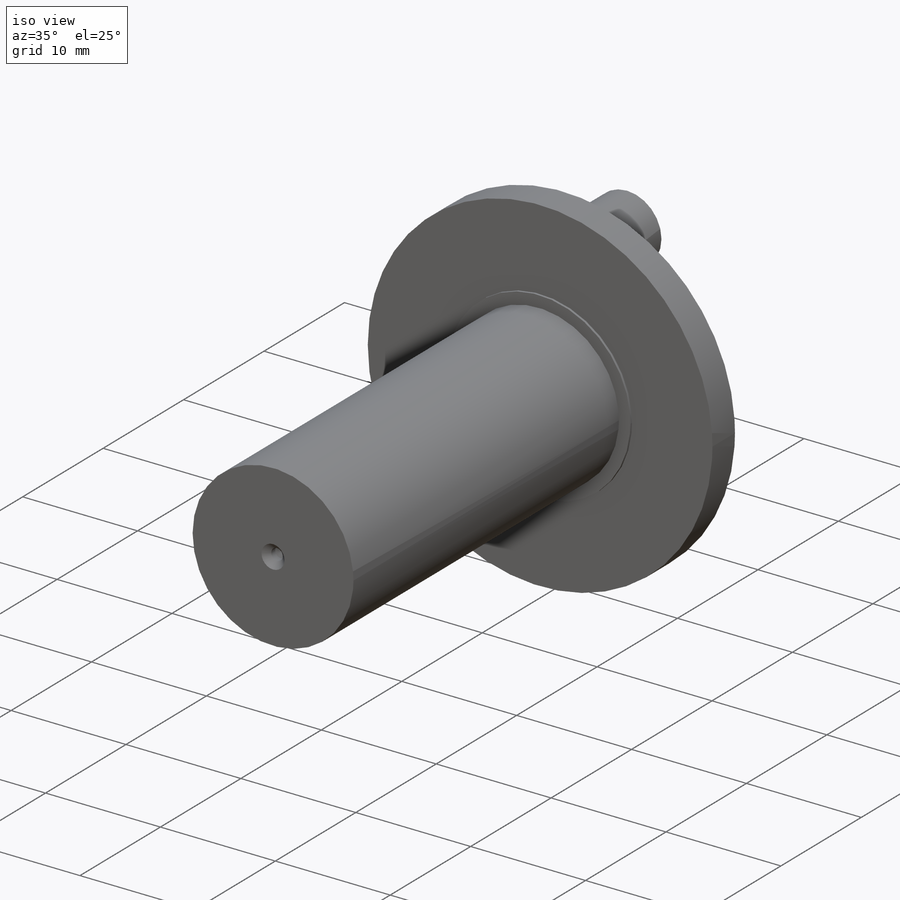
[diagram: iso view]
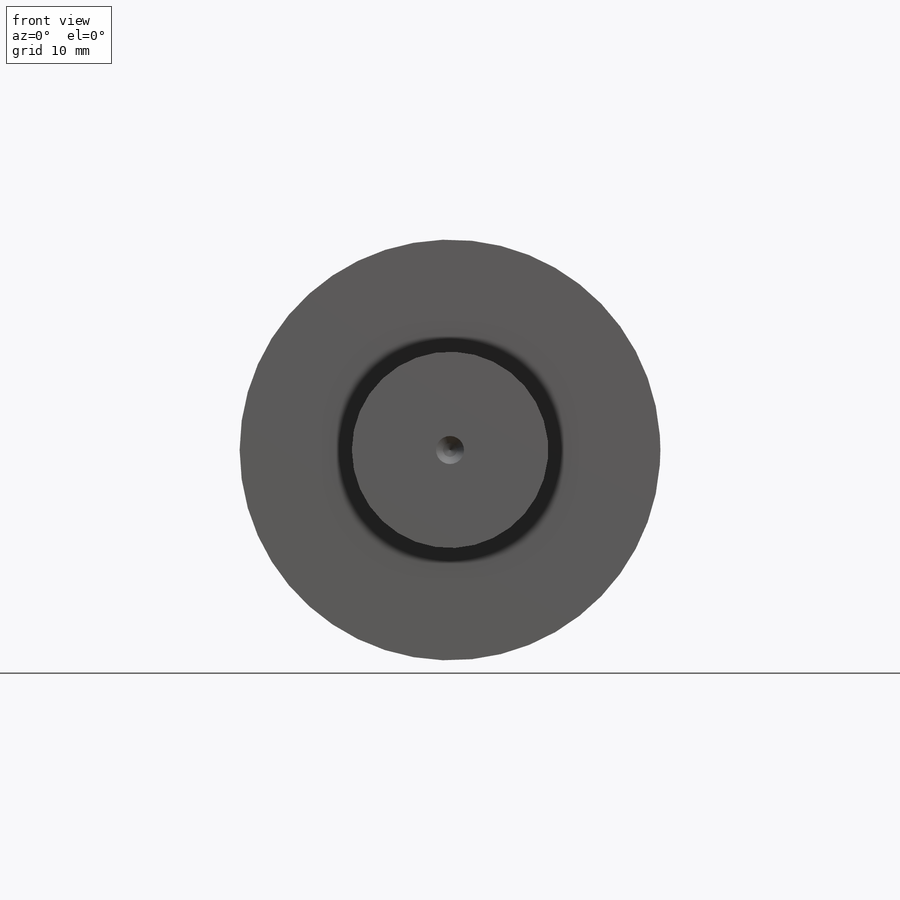
[diagram: front view]
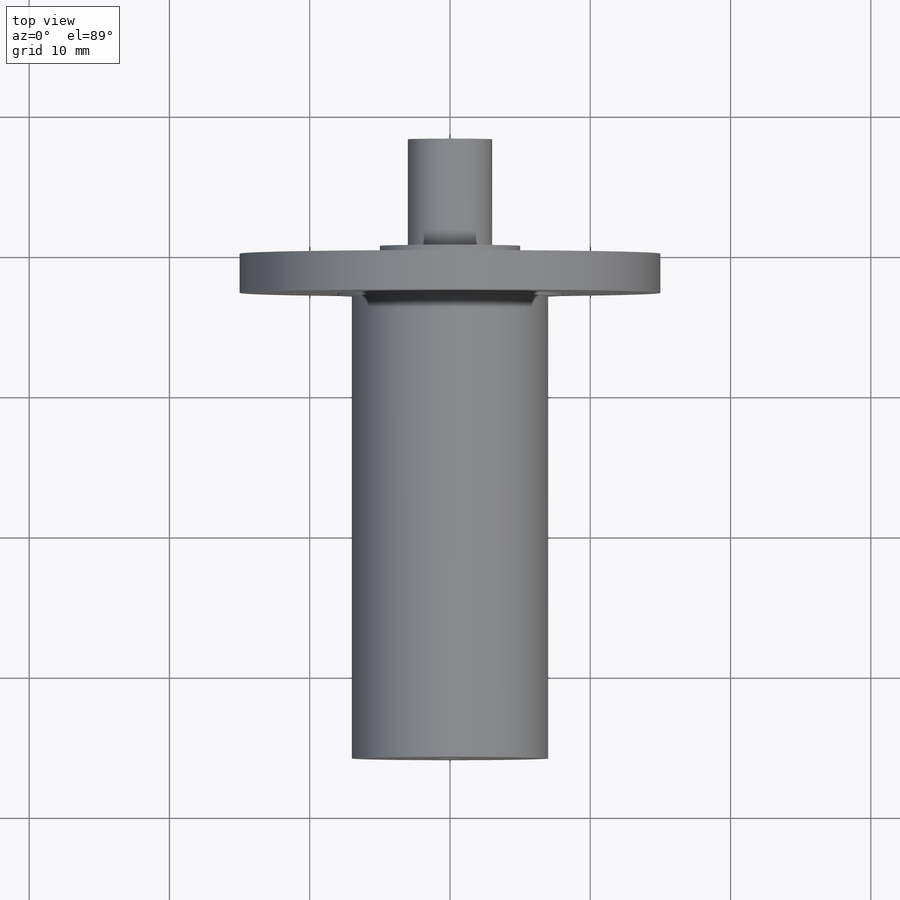
[diagram: top view]
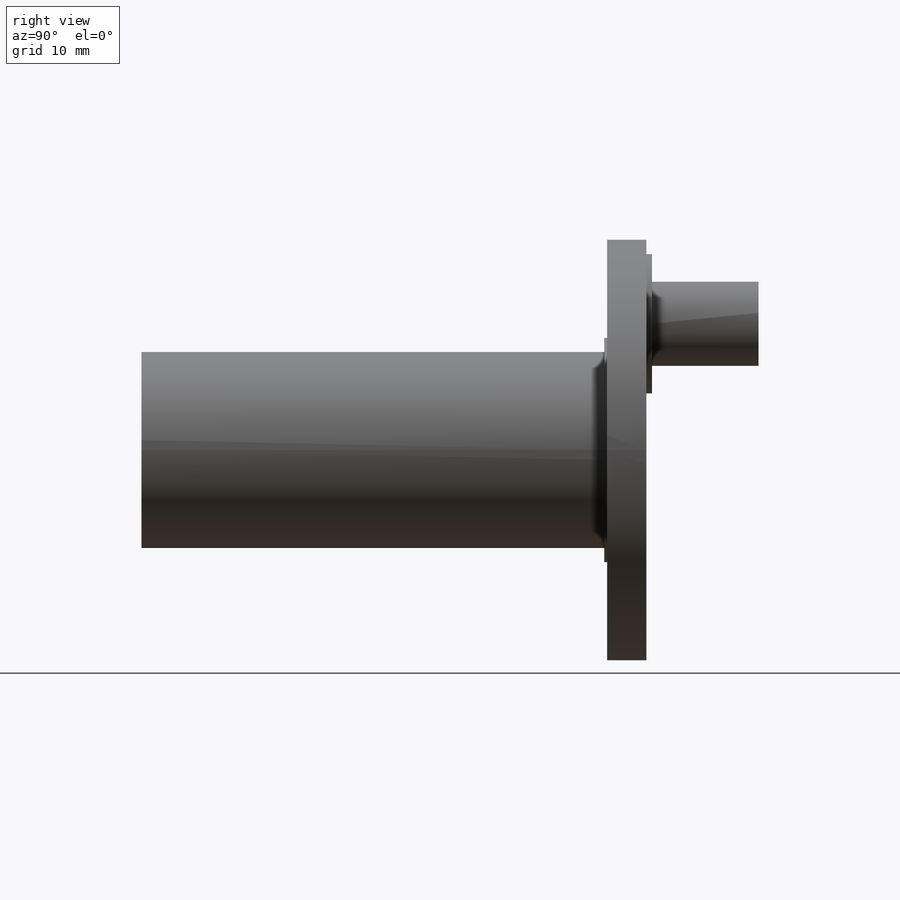
[diagram: right view]
SOLIDWORKS PART (.sldprt)
format: sldprt  version: not decoded by parser v0  size: 202,240 bytes
history: native  units: mm
features: sketch x7, extrude x5, material x1, hole x1 (+12 scaffold rows collapsed)
feature tree (26):
  scaffold x12  (default folders/planes/origin — collapsed)
  material  "Material <not specified>"
  sketch  "Sketch1"  dims[D1=30.0mm]
  extrude  "Boss-Extrude1"  Depth=2.8mm
  sketch  "Sketch3"  dims[D1=16.0mm]
  extrude  "Boss-Extrude3"  Depth=0.2mm
  sketch  "Sketch2"  dims[D1=14.0mm]
  extrude  "Boss-Extrude2"  Depth=33mm
  sketch  "Sketch4"  dims[D1=10.0mm D2=9.0mm]
  extrude  "Boss-Extrude4"  Depth=0.4mm
  sketch  "Sketch5"  dims[D1=6.0mm]
  extrude  "Boss-Extrude5"  Depth=8mm
  hole  "CSK for M2 Oval Head Machine Screw1"  Diameter=1mm Depth=1mm
  sketch  "Sketch9"
  sketch  "Sketch8"  dims[hole-wizard template sketch: 39 standard entries collapsed; hole parameters kept: c13.Hole Dia.=1.0mm c13.Hole Depth=1.0mm c13.Near C'Sink Dia.=2.0mm c13.D4=~33.297463mm c13.Near C'Sink Angle=90.0deg c14.D5=~14.816244mm c14.Drill Angle=118.0deg]
decode coverage: 12 of 13 modeling features carry decoded parameters
note: ~ marks probable driven/reference dimensions
note: suppression state not decoded; provenance and decode notes live in map.json
